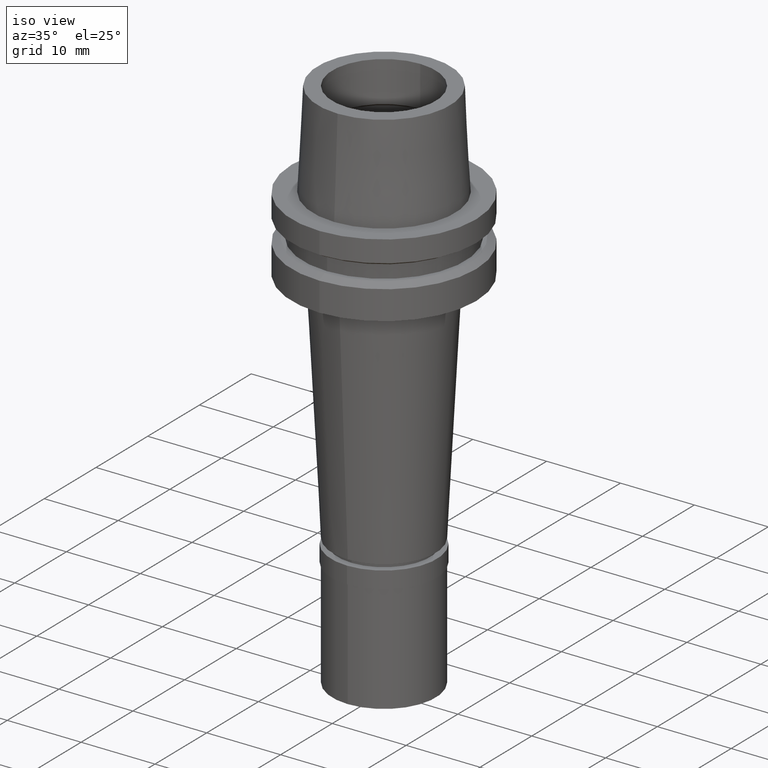
[diagram: clean part render]
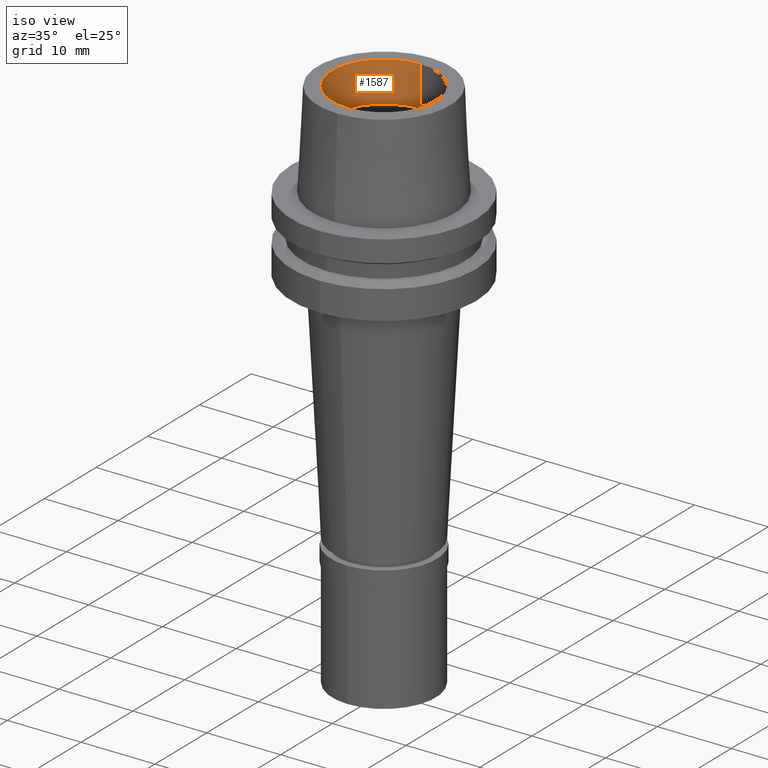
[diagram: same view with one face highlighted and labeled with its STEP entity id]
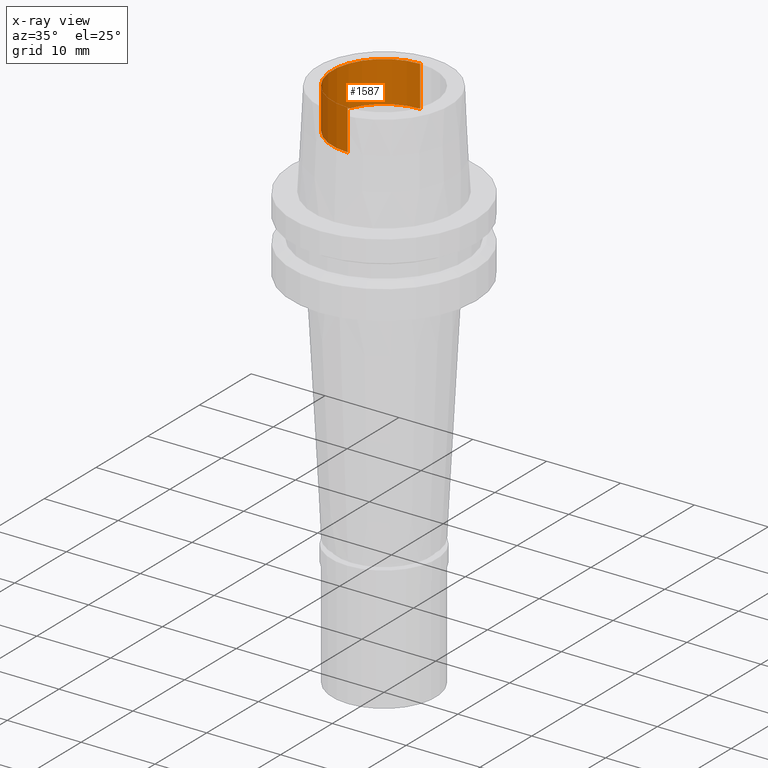
[diagram: x-ray of the same camera — body ghosted, the highlighted face saturated]
A machine part, iso view. The second image highlights one B-rep face of the part: STEP entity #1587.
The next image is the same camera in x-ray: the body ghosted, the highlighted face saturated — about 0% of this face is hidden behind the body in this view.
In plain terms, the highlighted cylindrical surface (partial cylindrical patch) has radius 7 mm, axis along (0, 0, 1).
Its self-contained STEP definition (entity closure, byte-faithful):
#76 = CARTESIAN_POINT ( 'NONE',  ( 0.0000000000000000000, 7.000000000000000000, 13.00000000000000000 ) ) ;
#115 = CARTESIAN_POINT ( 'NONE',  ( 0.0000000000000000000, -7.000000000000000000, 7.498675134594999570 ) ) ;
#140 = EDGE_CURVE ( 'NONE', #1272, #287, #379, .T. ) ;
#158 = AXIS2_PLACEMENT_3D ( 'NONE', #2629, #338, #2244 ) ;
#201 = AXIS2_PLACEMENT_3D ( 'NONE', #655, #208, #1034 ) ;
#208 = DIRECTION ( 'NONE',  ( 0.0000000000000000000, 0.0000000000000000000, 1.000000000000000000 ) ) ;
#260 = VERTEX_POINT ( 'NONE', #973 ) ;
#261 = DIRECTION ( 'NONE',  ( 0.0000000000000000000, 0.0000000000000000000, 1.000000000000000000 ) ) ;
#276 = ORIENTED_EDGE ( 'NONE', *, *, #2015, .T. ) ;
#287 = VERTEX_POINT ( 'NONE', #2042 ) ;
#338 = DIRECTION ( 'NONE',  ( 0.0000000000000000000, 0.0000000000000000000, -1.000000000000000000 ) ) ;
#379 = LINE ( 'NONE', #2459, #464 ) ;
#435 = CYLINDRICAL_SURFACE ( 'NONE', #201, 7.000000000000000000 ) ;
#464 = VECTOR ( 'NONE', #1217, 1000.000000000000000 ) ;
#655 = CARTESIAN_POINT ( 'NONE',  ( 0.0000000000000000000, 0.0000000000000000000, -59.45000000000000284 ) ) ;
#710 = AXIS2_PLACEMENT_3D ( 'NONE', #2559, #261, #1960 ) ;
#941 = ORIENTED_EDGE ( 'NONE', *, *, #140, .F. ) ;
#973 = CARTESIAN_POINT ( 'NONE',  ( 0.0000000000000000000, 7.000000000000000000, 7.498675134594999570 ) ) ;
#1034 = DIRECTION ( 'NONE',  ( 0.0000000000000000000, 1.000000000000000000, 0.0000000000000000000 ) ) ;
#1140 = EDGE_CURVE ( 'NONE', #1774, #287, #2466, .T. ) ;
#1217 = DIRECTION ( 'NONE',  ( 0.0000000000000000000, 0.0000000000000000000, 1.000000000000000000 ) ) ;
#1272 = VERTEX_POINT ( 'NONE', #115 ) ;
#1308 = CARTESIAN_POINT ( 'NONE',  ( 0.0000000000000000000, 7.000000000000000000, 7.498675134594999570 ) ) ;
#1587 = ADVANCED_FACE ( 'NONE', ( #1877 ), #435, .F. ) ;
#1774 = VERTEX_POINT ( 'NONE', #76 ) ;
#1818 = ORIENTED_EDGE ( 'NONE', *, *, #1140, .T. ) ;
#1877 = FACE_OUTER_BOUND ( 'NONE', #2636, .T. ) ;
#1944 = LINE ( 'NONE', #1308, #2638 ) ;
#1960 = DIRECTION ( 'NONE',  ( 0.0000000000000000000, 1.000000000000000000, 0.0000000000000000000 ) ) ;
#2015 = EDGE_CURVE ( 'NONE', #1272, #260, #2076, .T. ) ;
#2042 = CARTESIAN_POINT ( 'NONE',  ( 0.0000000000000000000, -7.000000000000000000, 13.00000000000000000 ) ) ;
#2076 = CIRCLE ( 'NONE', #158, 7.000000000000000000 ) ;
#2147 = ORIENTED_EDGE ( 'NONE', *, *, #2294, .T. ) ;
#2244 = DIRECTION ( 'NONE',  ( 0.0000000000000000000, -1.000000000000000000, 0.0000000000000000000 ) ) ;
#2294 = EDGE_CURVE ( 'NONE', #260, #1774, #1944, .T. ) ;
#2459 = CARTESIAN_POINT ( 'NONE',  ( 0.0000000000000000000, -7.000000000000000000, 7.498675134594999570 ) ) ;
#2466 = CIRCLE ( 'NONE', #710, 7.000000000000000000 ) ;
#2533 = DIRECTION ( 'NONE',  ( 0.0000000000000000000, 0.0000000000000000000, 1.000000000000000000 ) ) ;
#2559 = CARTESIAN_POINT ( 'NONE',  ( 0.0000000000000000000, 0.0000000000000000000, 13.00000000000000000 ) ) ;
#2629 = CARTESIAN_POINT ( 'NONE',  ( 0.0000000000000000000, 0.0000000000000000000, 7.498675134594999570 ) ) ;
#2636 = EDGE_LOOP ( 'NONE', ( #1818, #941, #276, #2147 ) ) ;
#2638 = VECTOR ( 'NONE', #2533, 1000.000000000000000 ) ;